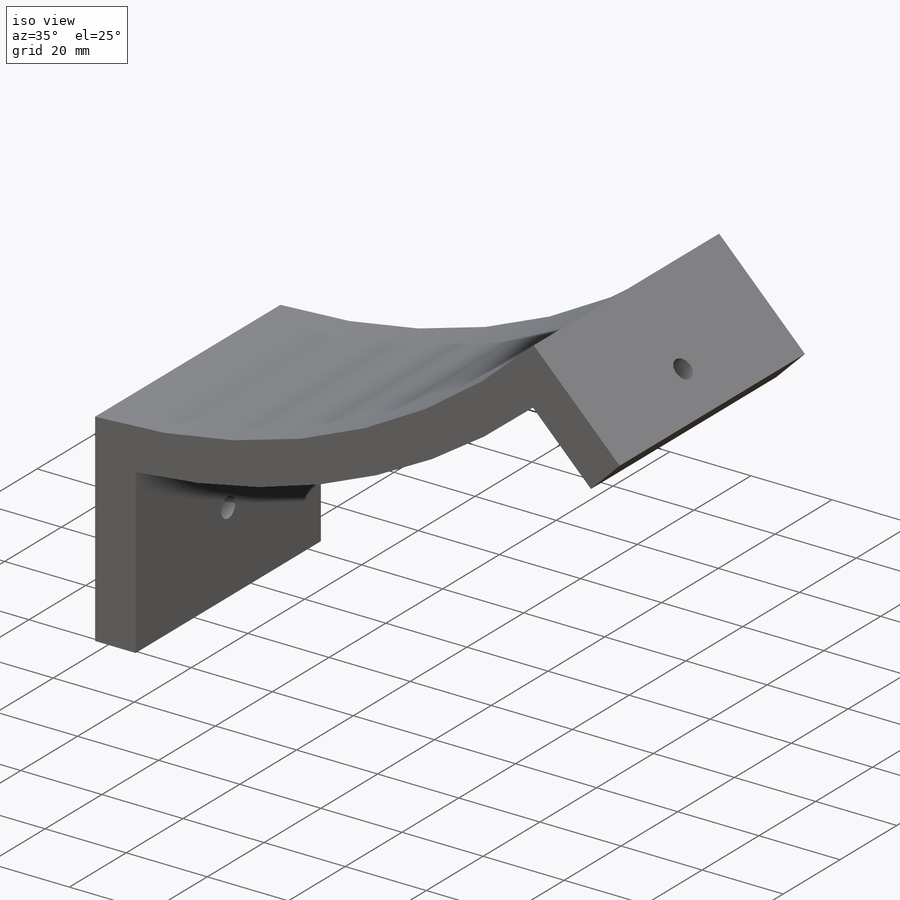
[diagram: iso view]
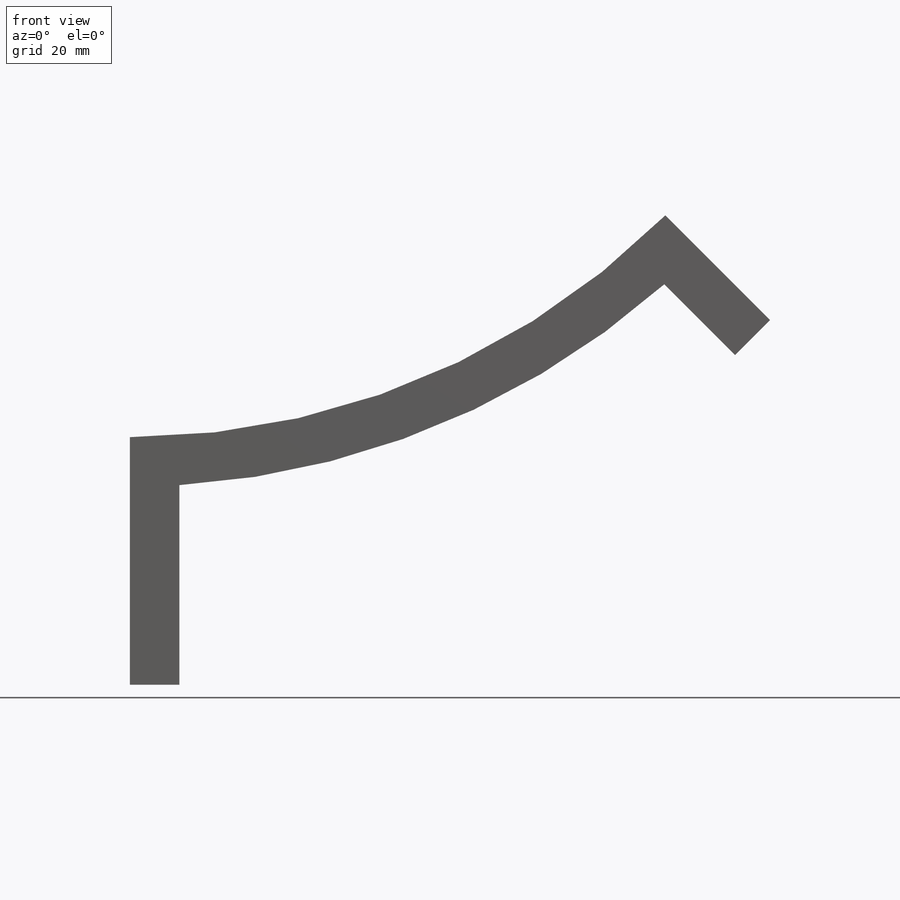
[diagram: front view]
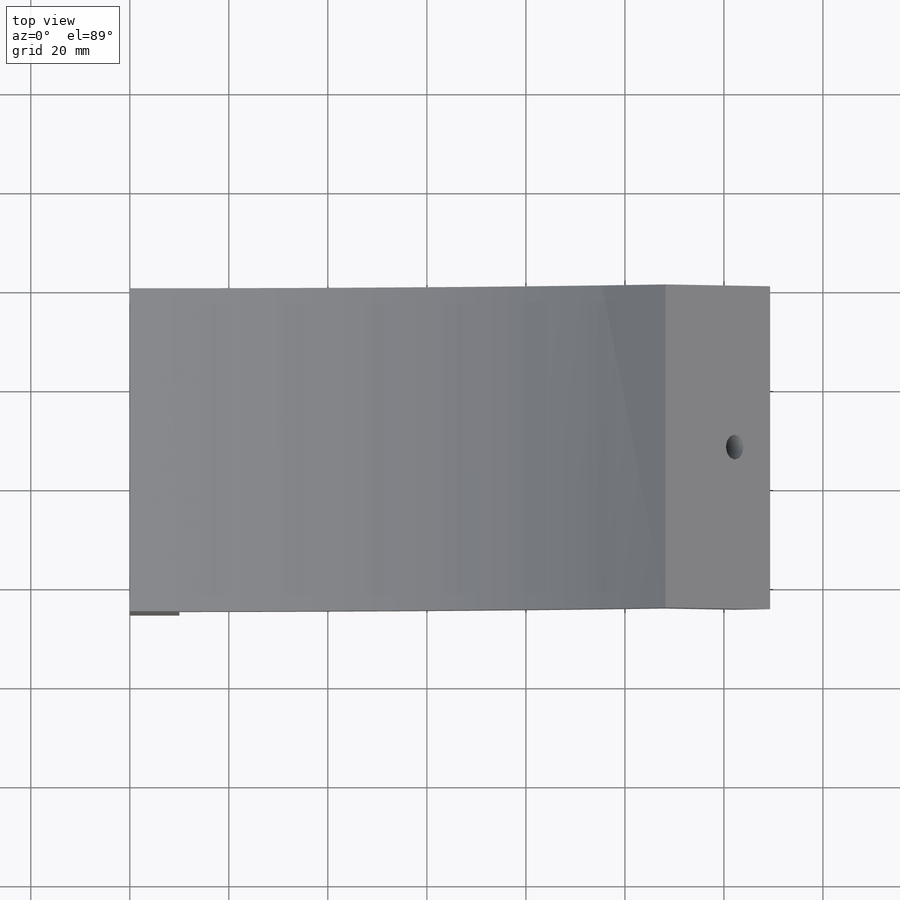
[diagram: top view]
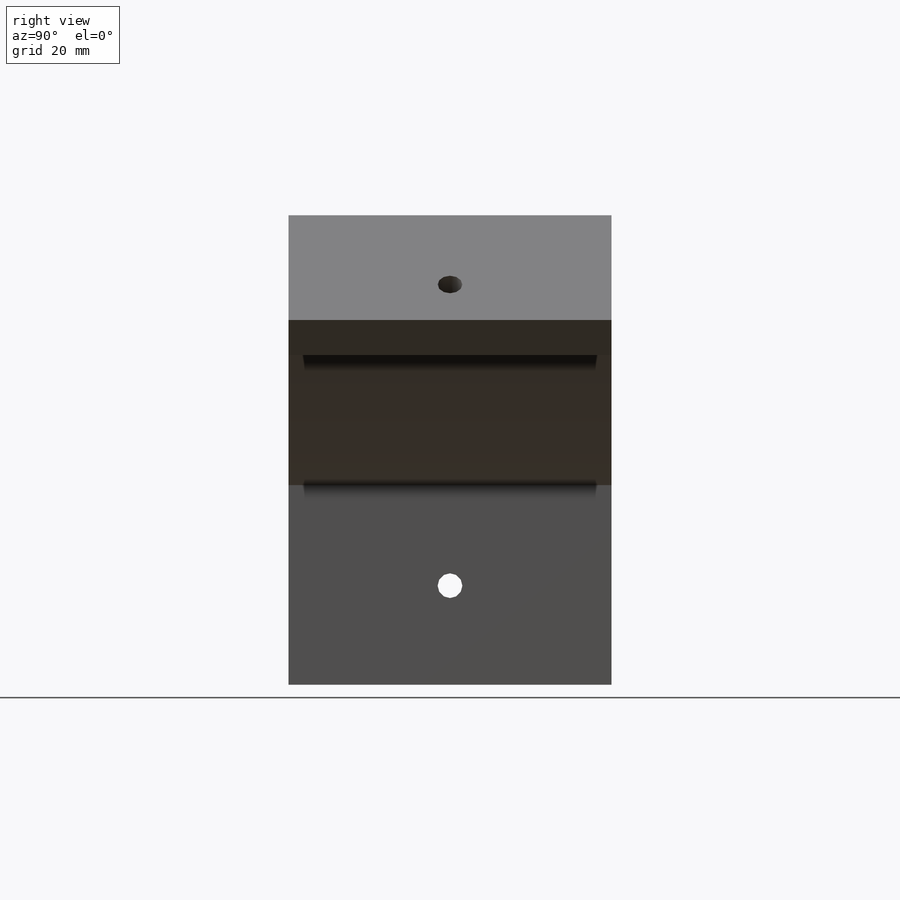
[diagram: right view]
SOLIDWORKS PART (.sldprt)
format: sldprt  version: not decoded by parser v0  size: 200,704 bytes
history: native  units: mm
features: plane x3, sketch x3, cut_extrude x2, material x1, extrude x1 (+9 scaffold rows collapsed)
feature tree (19):
  scaffold x9  (default folders/planes/origin — collapsed)
  material  "Material <sin especificar>"
  plane  "Alzado"
  plane  "Planta"
  plane  "Vista lateral"
  sketch  "Croquis1"  dims[c1.D1=326.0mm c1.D2=306.0mm c2.D1=306.0mm c2.D3=153.0mm c2.D8=326.0mm c2.D6=326.0mm c3.D1=~138.430007mm c3.D2=~99.290906mm c4.D1=~73.137563mm c5.D1=45.0deg c5.D2=10.0mm c5.D3=~228.507878mm c6.D3=~0.658837deg c6.D4=10.0mm c7.D4=90.0deg c8.D4=50.0mm c8.D3=30.0mm c8.D5=10.0mm c8.D6=~20.307038mm c8.D7=~182.918279mm c8.D8=~20.225316mm]
  extrude  "Saliente-Extruir1"  Depth=65.25mm
  sketch  "Croquis5"  dims[D1=~5.883724mm D2=32.625mm D3=20.0mm]
  cut_extrude  "Cortar-Extruir3"  Depth=45mm
  sketch  "Croquis6"  dims[D1=32.63mm D2=10.15mm]
  cut_extrude  "Cortar-Extruir4"  Depth=12mm
decode coverage: 6 of 6 modeling features carry decoded parameters
note: ~ marks probable driven/reference dimensions
note: suppression state not decoded; provenance and decode notes live in map.json
